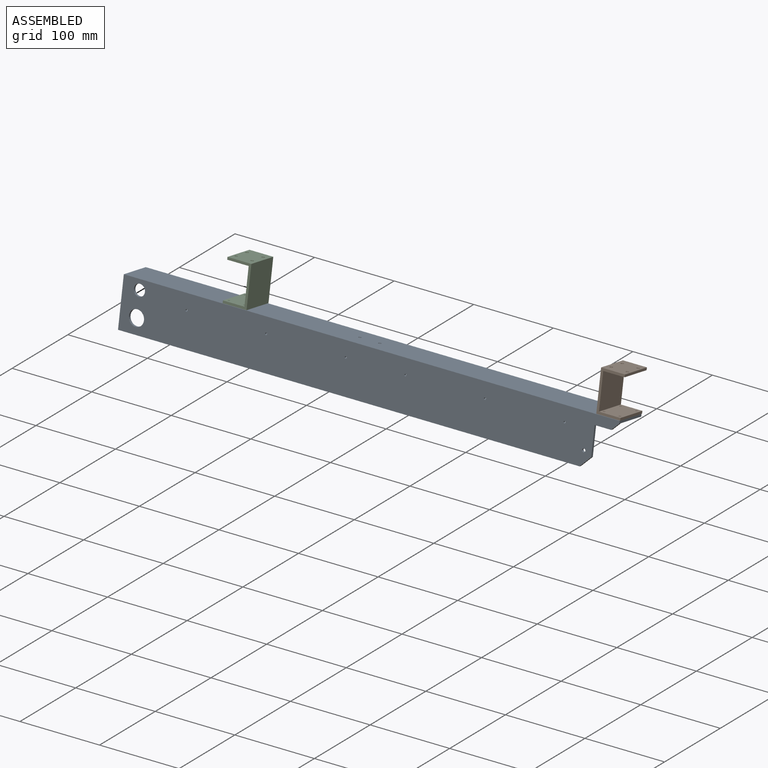
[diagram: assembled view]
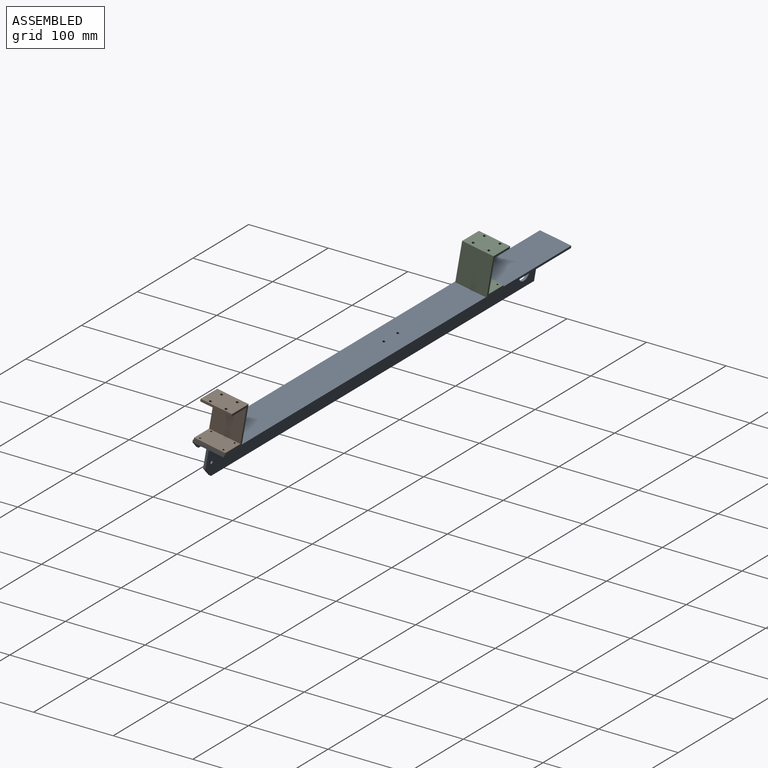
[diagram: assembled view, second angle]
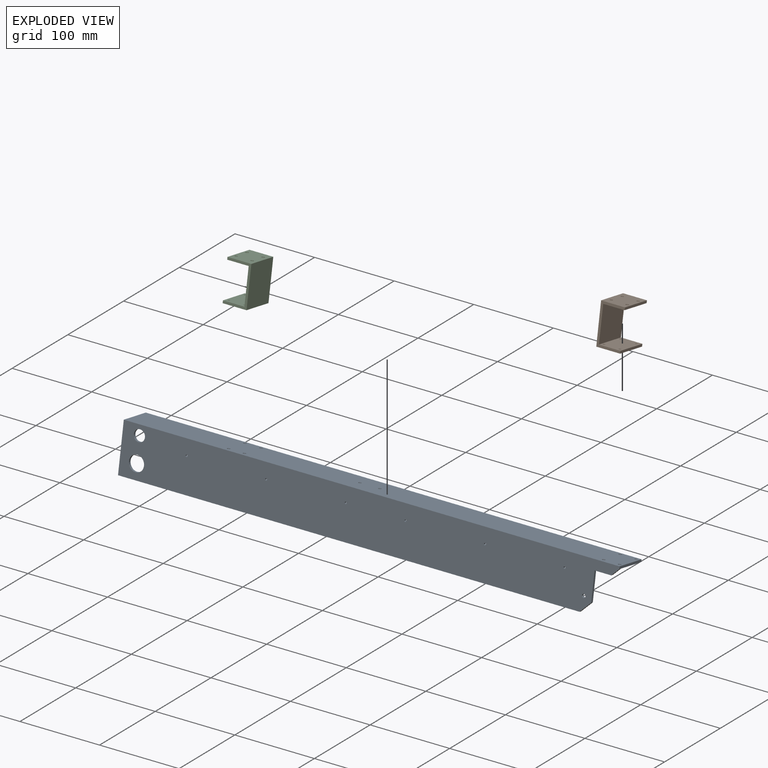
[diagram: exploded view]
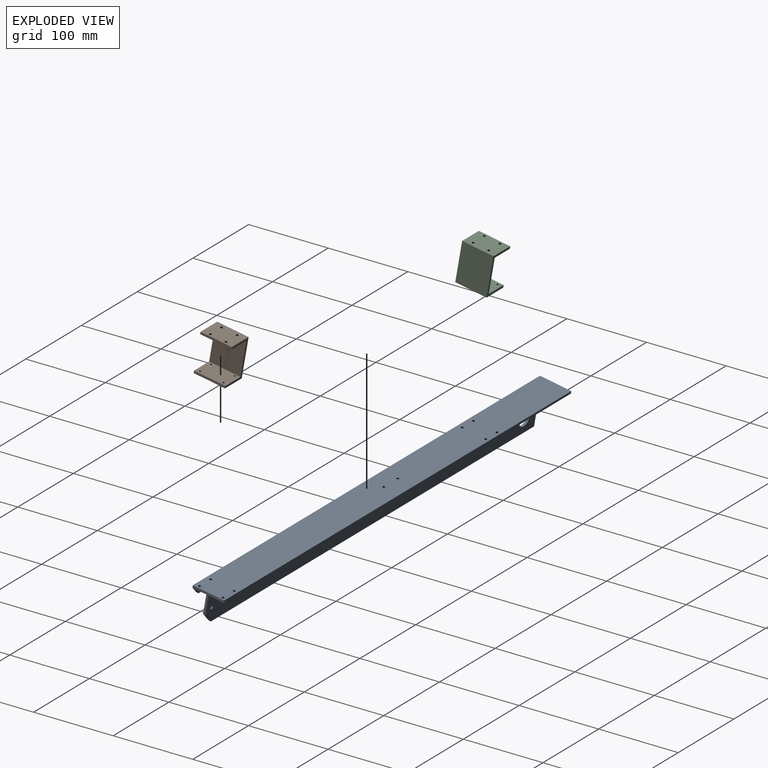
[diagram: exploded view, second angle]
ASSEMBLY  parts=3 mates=5
PART A: 31 faces, bbox 623x40x60 mm
  f0: plane 623x60mm, normal (0,-1,0), area 35334.2mm2, adj f1,f5,f6,f7,f8,f9,f10,f11
  f1: plane 623x40mm, normal (0,0,-1), area 24823.8mm2, adj f0,f2,f6,f7,f21,f22,f23,f24
  f2: plane 623x3mm, normal (0,1,0), area 1869mm2, adj f1,f3,f6,f7
  f3: plane 623x37mm, normal (0,0,1), area 22954.8mm2, adj f2,f4,f6,f7,f21,f22,f23,f24
  f4: plane 623x57mm, normal (0,1,0), area 33465.2mm2, adj f3,f5,f6,f8,f9,f10,f11,f12
  f5: plane 580x3mm, normal (0,0,1), area 1740mm2, adj f0,f4,f6,f8
  f6: plane 60x40mm, normal (1,0,0), area 291mm2, adj f0,f1,f2,f3,f4,f5
  f7: plane 40x3mm, normal (-1,0,0), area 120mm2, adj f0,f1,f2,f3,f10
  f8: plane 13x13mm, normal (-0.71,0,0.71), area 55.2mm2, adj f0,f4,f5,f9
  f9: plane 35x3mm, normal (-1,0,0), area 105mm2, adj f0,f4,f8,f11
  f10: plane 9x9mm, normal (-0.71,0,0.71), area 38.2mm2, adj f0,f4,f7,f11
  f11: plane 21x3mm, normal (0,0,1), area 63mm2, adj f0,f4,f9,f10
  f12: cylinder r=9.5mm len=19mm, axis (0,1,0), area 179.1mm2, adj f0,f4
  f13: cylinder r=7mm len=14mm, axis (0,1,0), area 131.9mm2, adj f0,f4
  f14: cylinder r=2.1mm len=4.2mm, axis (0,1,0), area 39.6mm2, adj f0,f4
  f15: cylinder r=1.25mm len=3mm, axis (0,1,0), area 23.6mm2, adj f0,f4
  f16: cylinder r=1.25mm len=3mm, axis (0,1,0), area 23.6mm2, adj f0,f4
  f17: cylinder r=1.25mm len=3mm, axis (0,1,0), area 23.6mm2, adj f0,f4
  f18: cylinder r=1.25mm len=3mm, axis (0,1,0), area 23.6mm2, adj f0,f4
  f19: cylinder r=1.25mm len=3mm, axis (0,1,0), area 23.6mm2, adj f0,f4
  f20: cylinder r=1.25mm len=3mm, axis (0,1,0), area 23.6mm2, adj f0,f4
  f21: cylinder r=1.75mm len=3.5mm, axis (0,0,1), area 33mm2, adj f1,f3
  f22: cylinder r=1.75mm len=3.5mm, axis (0,0,1), area 33mm2, adj f1,f3
  f23: cylinder r=1.75mm len=3.5mm, axis (0,0,1), area 33mm2, adj f1,f3
  f24: cylinder r=1.75mm len=3.5mm, axis (0,0,1), area 33mm2, adj f1,f3
  f25: cylinder r=1.75mm len=3.5mm, axis (0,0,1), area 33mm2, adj f1,f3
  f26: cylinder r=1.75mm len=3.5mm, axis (0,0,1), area 33mm2, adj f1,f3
  f27: cylinder r=1.75mm len=3.5mm, axis (0,0,1), area 33mm2, adj f1,f3
  f28: cylinder r=1.75mm len=3.5mm, axis (0,0,1), area 33mm2, adj f1,f3
  f29: cylinder r=1.75mm len=3.5mm, axis (0,0,1), area 33mm2, adj f1,f3
  f30: cylinder r=1.75mm len=3.5mm, axis (0,0,1), area 33mm2, adj f1,f3
PART B: 18 faces, bbox 30x50x40 mm
  f0: plane 40x3mm, normal (-1,0,0), area 120mm2, adj f1,f7,f8,f9
  f1: plane 40x30mm, normal (0,-1,0), area 1161.5mm2, adj f0,f2,f8,f9,f10,f11,f12,f13
  f2: plane 50x40mm, normal (1,0,0), area 2000mm2, adj f1,f3,f8,f9
  f3: plane 40x30mm, normal (0,1,0), area 1180.4mm2, adj f2,f4,f8,f9,f14,f15,f16,f17
  f4: plane 40x3mm, normal (-1,0,0), area 120mm2, adj f3,f5,f8,f9
  f5: plane 40x27mm, normal (0,-1,0), area 1060.4mm2, adj f4,f6,f8,f9,f14,f15,f16,f17
  f6: plane 44x40mm, normal (-1,0,0), area 1760mm2, adj f5,f7,f8,f9
  f7: plane 40x27mm, normal (0,1,0), area 1041.5mm2, adj f0,f6,f8,f9,f10,f11,f12,f13
  f8: plane 50x30mm, normal (0,0,1), area 312mm2, adj f0,f1,f2,f3,f4,f5,f6,f7
  f9: plane 50x30mm, normal (0,0,-1), area 312mm2, adj f0,f1,f2,f3,f4,f5,f6,f7
  f10: cylinder r=1.75mm len=3.5mm, axis (0,-1,0), area 33mm2, adj f1,f7
  f11: cylinder r=1.75mm len=3.5mm, axis (0,-1,0), area 33mm2, adj f1,f7
  f12: cylinder r=1.75mm len=3.5mm, axis (0,-1,0), area 33mm2, adj f1,f7
  f13: cylinder r=1.75mm len=3.5mm, axis (0,-1,0), area 33mm2, adj f1,f7
  f14: cylinder r=1.25mm len=3mm, axis (0,1,0), area 23.6mm2, adj f3,f5
  f15: cylinder r=1.25mm len=3mm, axis (0,1,0), area 23.6mm2, adj f3,f5
  f16: cylinder r=1.25mm len=3mm, axis (0,1,0), area 23.6mm2, adj f3,f5
  f17: cylinder r=1.25mm len=3mm, axis (0,1,0), area 23.6mm2, adj f3,f5
PART C: same geometry as B
PLACE A rot(axis=(0,-1,0.09),180deg) t=(774.06,141.98,-38.67)mm fixed
PLACE B rot(axis=(0,-0.64,0.77),180deg) t=(744.06,191.04,3.45)mm
PLACE C rot(axis=(-1,0,0),100deg) t=(304.56,151.65,10.4)mm fixed
MATE cylindrical A.f22 <-> B.f15  axis (0,-0.17,-0.98) through (750.06,176.91,-47.87)mm
MATE cylindrical C.f17 <-> A.f27  axis (0,-0.17,-0.98) through (278.56,177.43,-44.92)mm
MATE cylindrical A.f27 <-> C.f17  axis (0,-0.17,-0.98) through (278.56,176.91,-47.87)mm
MATE planar A.f1 <-> C.f3  axis (0,0.17,0.98) through (462.38,161.67,-42.14)mm
MATE planar A.f1 <-> B.f3  axis (0,0.17,0.98) through (462.38,161.67,-42.14)mm
